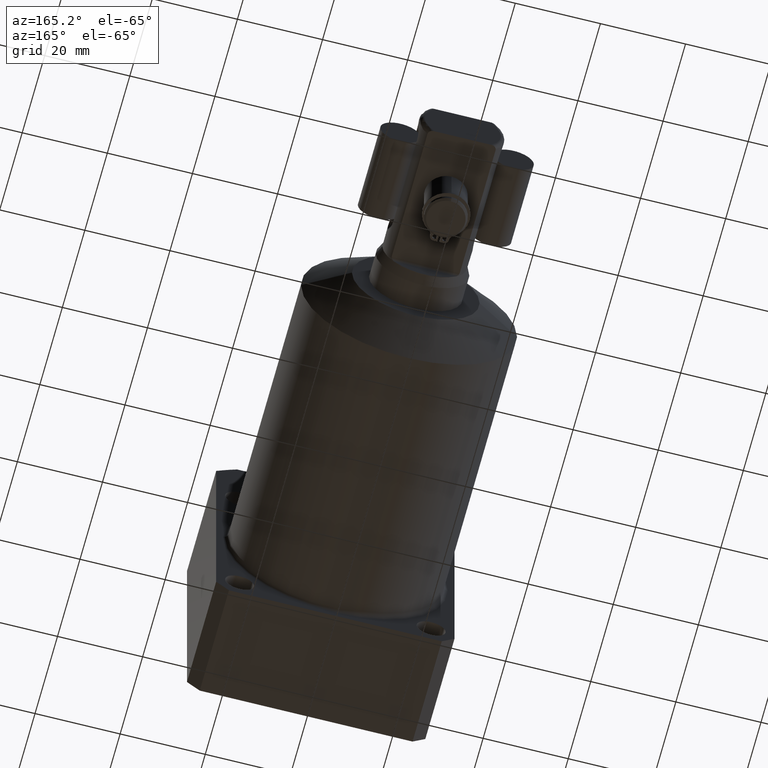
[diagram: clean part render]
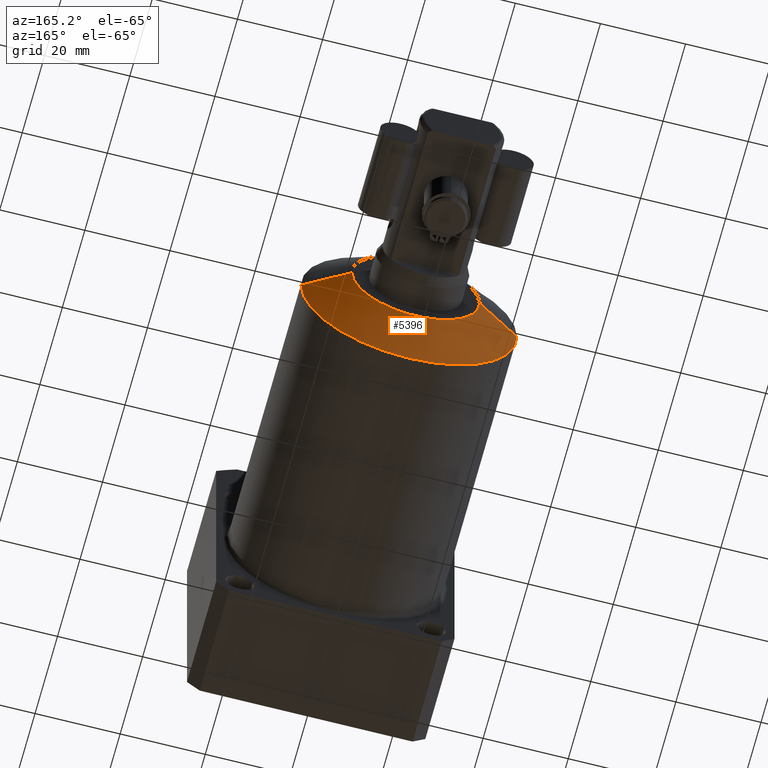
[diagram: same view with one face highlighted and labeled with its STEP entity id]
A machine part, auxiliary view. The second image highlights one B-rep face of the part: STEP entity #5396.
In plain terms, the highlighted conical surface has half-angle 60 deg.
Its self-contained STEP definition (entity closure, byte-faithful):
#1455=CARTESIAN_POINT('',(0.E0,7.15E1,0.E0));
#1456=DIRECTION('',(0.E0,1.E0,0.E0));
#1457=DIRECTION('',(1.E0,0.E0,0.E0));
#1458=AXIS2_PLACEMENT_3D('',#1455,#1456,#1457);
#1487=DIRECTION('',(8.660254037844E-1,-5.E-1,0.E0));
#1488=VECTOR('',#1487,1.199156509107E1);
#1489=CARTESIAN_POINT('',(1.5E1,7.15E1,0.E0));
#1490=LINE('',#1489,#1488);
#1494=DIRECTION('',(-8.660254037844E-1,-5.E-1,0.E0));
#1495=VECTOR('',#1494,1.199156509107E1);
#1496=CARTESIAN_POINT('',(-1.5E1,7.15E1,0.E0));
#1497=LINE('',#1496,#1495);
#1517=CARTESIAN_POINT('',(1.203292953544E-14,6.550421745447E1,0.E0));
#1518=DIRECTION('',(0.E0,-1.E0,0.E0));
#1519=DIRECTION('',(-1.E0,0.E0,0.E0));
#1520=AXIS2_PLACEMENT_3D('',#1517,#1518,#1519);
#3743=CARTESIAN_POINT('',(1.5E1,7.15E1,0.E0));
#3744=CARTESIAN_POINT('',(-1.5E1,7.15E1,0.E0));
#3745=VERTEX_POINT('',#3743);
#3746=VERTEX_POINT('',#3744);
#3747=CARTESIAN_POINT('',(2.5385E1,6.550421745447E1,0.E0));
#3748=VERTEX_POINT('',#3747);
#3749=CARTESIAN_POINT('',(-2.5385E1,6.550421745447E1,0.E0));
#3750=VERTEX_POINT('',#3749);
#5382=CARTESIAN_POINT('',(0.E0,6.850210872723E1,0.E0));
#5383=DIRECTION('',(0.E0,-1.E0,0.E0));
#5384=DIRECTION('',(-1.E0,0.E0,0.E0));
#5385=AXIS2_PLACEMENT_3D('',#5382,#5383,#5384);
#5386=CONICAL_SURFACE('',#5385,2.01925E1,6.E1);
#5387=ORIENTED_EDGE('',*,*,#5370,.T.);
#5389=ORIENTED_EDGE('',*,*,#5388,.T.);
#5391=ORIENTED_EDGE('',*,*,#5390,.T.);
#5393=ORIENTED_EDGE('',*,*,#5392,.F.);
#5394=EDGE_LOOP('',(#5387,#5389,#5391,#5393));
#5395=FACE_OUTER_BOUND('',#5394,.F.);
#1459=CIRCLE('',#1458,1.5E1);
#1521=CIRCLE('',#1520,2.5385E1);
#5370=EDGE_CURVE('',#3745,#3746,#1459,.T.);
#5388=EDGE_CURVE('',#3746,#3750,#1497,.T.);
#5390=EDGE_CURVE('',#3750,#3748,#1521,.T.);
#5392=EDGE_CURVE('',#3745,#3748,#1490,.T.);
#5396=ADVANCED_FACE('',(#5395),#5386,.T.);